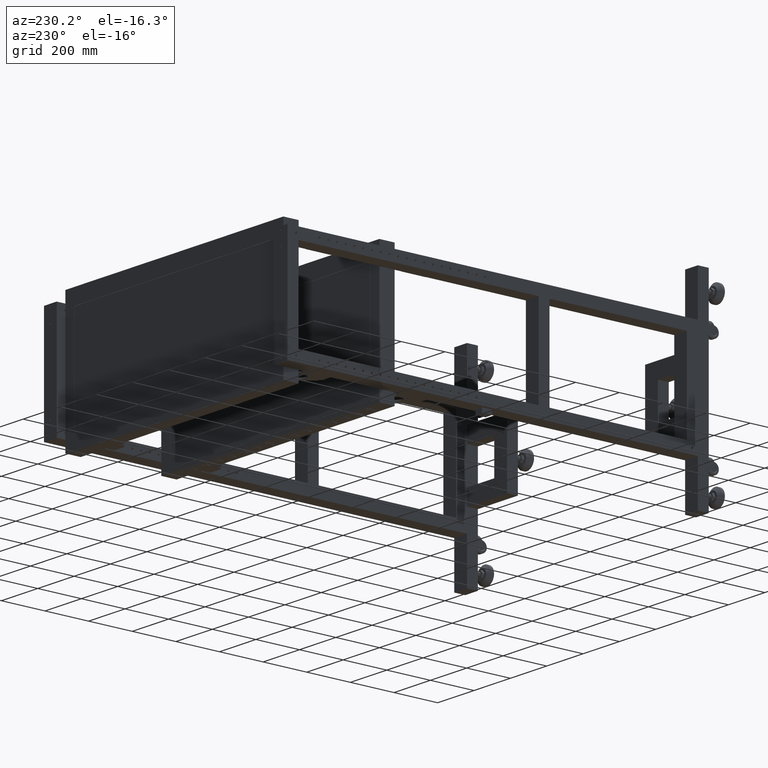
[diagram: clean part render]
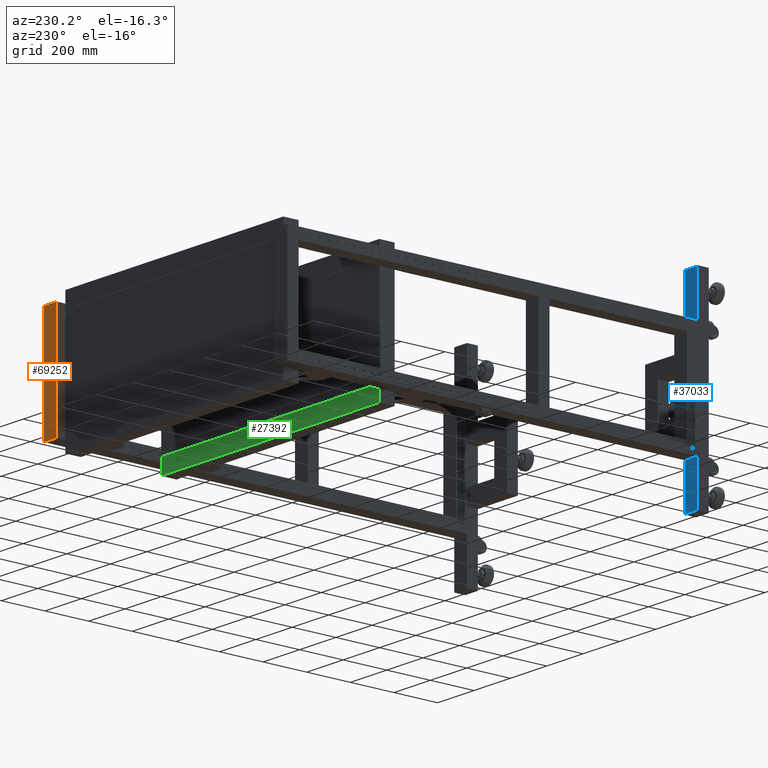
[diagram: same view with three faces highlighted in distinct colors, each labeled with its STEP entity id]
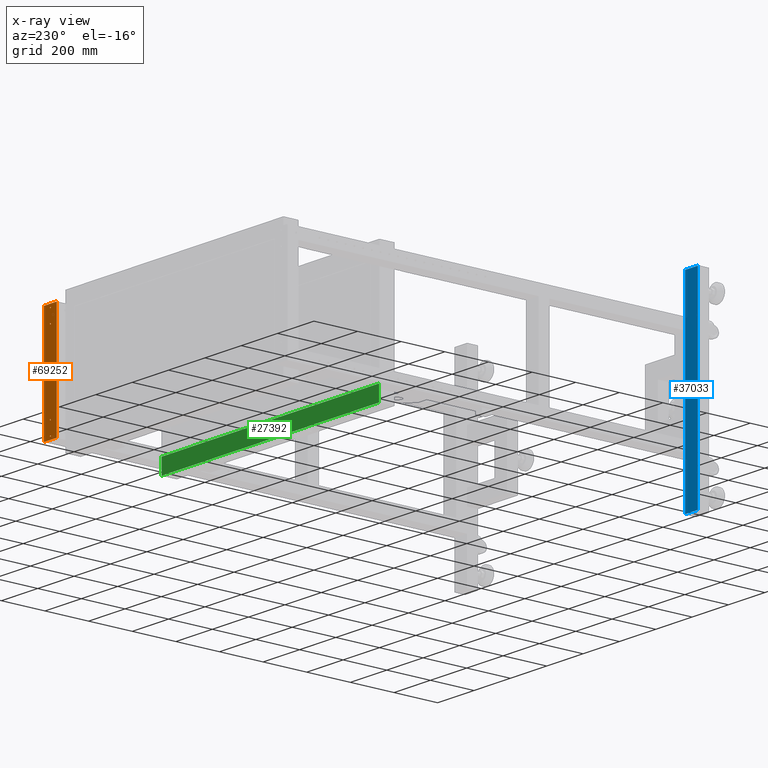
[diagram: x-ray of the same camera — body ghosted, the three highlighted faces saturated]
A machine part, auxiliary view with three faces highlighted in distinct colors.
The next image is the same camera in x-ray (body ghosted, the three faces saturated) — at least one of them is partly hidden behind the body in this view.
Their STEP definitions:

[orange] entity #69252 — the highlighted planar face has unit normal (-0, 1, 0).
#1042 = VERTEX_POINT ( 'NONE', #77399 ) ;
#1580 = EDGE_CURVE ( 'NONE', #29739, #4382, #46975, .T. ) ;
#1806 = CARTESIAN_POINT ( 'NONE',  ( -33.17248743718393200, 1036.441080402011266, -238.0999999999999943 ) ) ;
#3222 = EDGE_LOOP ( 'NONE', ( #7220, #79406 ) ) ;
#3864 = CARTESIAN_POINT ( 'NONE',  ( -33.17248743718393200, 1036.441080402011266, 238.0999999999999659 ) ) ;
#4382 = VERTEX_POINT ( 'NONE', #9919 ) ;
#7220 = ORIENTED_EDGE ( 'NONE', *, *, #58741, .T. ) ;
#8092 = LINE ( 'NONE', #32867, #64312 ) ;
#9919 = CARTESIAN_POINT ( 'NONE',  ( -33.17248743718393200, 1036.441080402011266, -233.9000000000000057 ) ) ;
#10649 = CARTESIAN_POINT ( 'NONE',  ( -33.17248743718393200, 1036.441080402011266, -236.0000000000000000 ) ) ;
#11349 = LINE ( 'NONE', #53639, #42828 ) ;
#11437 = DIRECTION ( 'NONE',  ( 0.000000000000000000, 0.000000000000000000, 1.000000000000000000 ) ) ;
#11704 = CARTESIAN_POINT ( 'NONE',  ( 1.827512562815769570, 1036.441080402011039, 250.0000000000000000 ) ) ;
#11787 = ORIENTED_EDGE ( 'NONE', *, *, #47866, .T. ) ;
#12287 = ORIENTED_EDGE ( 'NONE', *, *, #35877, .F. ) ;
#14520 = EDGE_CURVE ( 'NONE', #21040, #73559, #49910, .T. ) ;
#16628 = FACE_BOUND ( 'NONE', #76742, .T. ) ;
#17618 = ORIENTED_EDGE ( 'NONE', *, *, #55561, .T. ) ;
#18997 = EDGE_LOOP ( 'NONE', ( #26499, #12287, #54433, #17618 ) ) ;
#19213 = DIRECTION ( 'NONE',  ( 2.251766706479394348E-16, -1.000000000000000000, -0.000000000000000000 ) ) ;
#19225 = CARTESIAN_POINT ( 'NONE',  ( -33.17248743718393200, 1036.441080402011266, 176.0000000000000000 ) ) ;
#19370 = ORIENTED_EDGE ( 'NONE', *, *, #1580, .T. ) ;
#19407 = VERTEX_POINT ( 'NONE', #58174 ) ;
#20521 = EDGE_CURVE ( 'NONE', #56165, #19407, #60353, .T. ) ;
#21015 = ORIENTED_EDGE ( 'NONE', *, *, #43884, .T. ) ;
#21040 = VERTEX_POINT ( 'NONE', #52423 ) ;
#21109 = DIRECTION ( 'NONE',  ( 2.251766706479394348E-16, -1.000000000000000000, -0.000000000000000000 ) ) ;
#24600 = VERTEX_POINT ( 'NONE', #75227 ) ;
#24863 = DIRECTION ( 'NONE',  ( 2.251766706479394348E-16, -1.000000000000000000, -0.000000000000000000 ) ) ;
#26499 = ORIENTED_EDGE ( 'NONE', *, *, #14520, .T. ) ;
#28445 = EDGE_CURVE ( 'NONE', #34095, #73261, #47643, .T. ) ;
#29619 = CARTESIAN_POINT ( 'NONE',  ( 1.827512562815769570, 1036.441080402011039, -250.0000000000000000 ) ) ;
#29739 = VERTEX_POINT ( 'NONE', #1806 ) ;
#29854 = CARTESIAN_POINT ( 'NONE',  ( 1.827512562815769570, 1036.441080402011039, 248.0000000000000000 ) ) ;
#30972 = AXIS2_PLACEMENT_3D ( 'NONE', #73875, #60482, #60891 ) ;
#32627 = AXIS2_PLACEMENT_3D ( 'NONE', #50845, #39039, #63800 ) ;
#32867 = CARTESIAN_POINT ( 'NONE',  ( 1.827512562815769570, 1036.441080402011039, -250.0000000000000000 ) ) ;
#33211 = CARTESIAN_POINT ( 'NONE',  ( -33.17248743718393200, 1036.441080402011266, -173.9000000000000057 ) ) ;
#33297 = AXIS2_PLACEMENT_3D ( 'NONE', #61539, #47775, #42049 ) ;
#34095 = VERTEX_POINT ( 'NONE', #40954 ) ;
#35309 = FACE_BOUND ( 'NONE', #69878, .T. ) ;
#35704 = FACE_OUTER_BOUND ( 'NONE', #18997, .T. ) ;
#35716 = AXIS2_PLACEMENT_3D ( 'NONE', #19225, #45205, #44010 ) ;
#35877 = EDGE_CURVE ( 'NONE', #53584, #73559, #41245, .T. ) ;
#36106 = PLANE ( 'NONE',  #30972 ) ;
#36271 = DIRECTION ( 'NONE',  ( 0.000000000000000000, 0.000000000000000000, -1.000000000000000000 ) ) ;
#37452 = DIRECTION ( 'NONE',  ( 0.000000000000000000, 0.000000000000000000, 1.000000000000000000 ) ) ;
#39039 = DIRECTION ( 'NONE',  ( 2.251766706479394348E-16, -1.000000000000000000, -0.000000000000000000 ) ) ;
#39173 = AXIS2_PLACEMENT_3D ( 'NONE', #68723, #24863, #37452 ) ;
#40954 = CARTESIAN_POINT ( 'NONE',  ( -33.17248743718393200, 1036.441080402011266, -178.0999999999999943 ) ) ;
#41245 = LINE ( 'NONE', #29854, #44216 ) ;
#41396 = FACE_BOUND ( 'NONE', #54398, .T. ) ;
#42049 = DIRECTION ( 'NONE',  ( 0.000000000000000000, 0.000000000000000000, 1.000000000000000000 ) ) ;
#42769 = CARTESIAN_POINT ( 'NONE',  ( -33.17248743718393200, 1036.441080402011266, 176.0000000000000000 ) ) ;
#42828 = VECTOR ( 'NONE', #59710, 1000.000000000000000 ) ;
#43884 = EDGE_CURVE ( 'NONE', #1042, #75934, #79220, .T. ) ;
#44010 = DIRECTION ( 'NONE',  ( 0.000000000000000000, 0.000000000000000000, -1.000000000000000000 ) ) ;
#44216 = VECTOR ( 'NONE', #53476, 1000.000000000000000 ) ;
#44410 = CIRCLE ( 'NONE', #56132, 2.099999999999990763 ) ;
#45118 = DIRECTION ( 'NONE',  ( 0.000000000000000000, 0.000000000000000000, 1.000000000000000000 ) ) ;
#45205 = DIRECTION ( 'NONE',  ( 2.251766706479394348E-16, -1.000000000000000000, -0.000000000000000000 ) ) ;
#46149 = CARTESIAN_POINT ( 'NONE',  ( -33.17248743718393200, 1036.441080402011266, 173.9000000000000057 ) ) ;
#46975 = CIRCLE ( 'NONE', #39173, 2.099999999999990763 ) ;
#47643 = CIRCLE ( 'NONE', #33297, 2.099999999999990763 ) ;
#47775 = DIRECTION ( 'NONE',  ( 2.251766706479394348E-16, -1.000000000000000000, -0.000000000000000000 ) ) ;
#47866 = EDGE_CURVE ( 'NONE', #19407, #56165, #78506, .T. ) ;
#49535 = CARTESIAN_POINT ( 'NONE',  ( -33.17248743718393200, 1036.441080402011266, 236.0000000000000000 ) ) ;
#49910 = LINE ( 'NONE', #11704, #58037 ) ;
#50845 = CARTESIAN_POINT ( 'NONE',  ( -33.17248743718393200, 1036.441080402011266, 236.0000000000000000 ) ) ;
#51214 = CARTESIAN_POINT ( 'NONE',  ( -33.17248743718393200, 1036.441080402011266, -176.0000000000000000 ) ) ;
#52423 = CARTESIAN_POINT ( 'NONE',  ( -68.17248743718407411, 1036.441080402011039, 250.0000000000000000 ) ) ;
#53476 = DIRECTION ( 'NONE',  ( 0.000000000000000000, 0.000000000000000000, 1.000000000000000000 ) ) ;
#53584 = VERTEX_POINT ( 'NONE', #29619 ) ;
#53639 = CARTESIAN_POINT ( 'NONE',  ( -68.17248743718407411, 1036.441080402011039, 248.0000000000000000 ) ) ;
#54398 = EDGE_LOOP ( 'NONE', ( #59397, #21015 ) ) ;
#54433 = ORIENTED_EDGE ( 'NONE', *, *, #65528, .F. ) ;
#54516 = DIRECTION ( 'NONE',  ( 2.251766706479394348E-16, -1.000000000000000000, -0.000000000000000000 ) ) ;
#55561 = EDGE_CURVE ( 'NONE', #24600, #21040, #11349, .T. ) ;
#56066 = AXIS2_PLACEMENT_3D ( 'NONE', #51214, #21109, #45118 ) ;
#56132 = AXIS2_PLACEMENT_3D ( 'NONE', #49535, #74287, #68182 ) ;
#56165 = VERTEX_POINT ( 'NONE', #46149 ) ;
#56524 = AXIS2_PLACEMENT_3D ( 'NONE', #42769, #19213, #36271 ) ;
#57449 = CIRCLE ( 'NONE', #72955, 2.099999999999990763 ) ;
#58037 = VECTOR ( 'NONE', #61663, 1000.000000000000000 ) ;
#58174 = CARTESIAN_POINT ( 'NONE',  ( -33.17248743718393200, 1036.441080402011266, 178.0999999999999943 ) ) ;
#58741 = EDGE_CURVE ( 'NONE', #73261, #34095, #76800, .T. ) ;
#58961 = EDGE_CURVE ( 'NONE', #75934, #1042, #44410, .T. ) ;
#59397 = ORIENTED_EDGE ( 'NONE', *, *, #58961, .T. ) ;
#59513 = EDGE_CURVE ( 'NONE', #4382, #29739, #57449, .T. ) ;
#59710 = DIRECTION ( 'NONE',  ( 0.000000000000000000, 0.000000000000000000, 1.000000000000000000 ) ) ;
#60353 = CIRCLE ( 'NONE', #35716, 2.099999999999990763 ) ;
#60482 = DIRECTION ( 'NONE',  ( -2.251766706479394348E-16, 1.000000000000000000, 0.000000000000000000 ) ) ;
#60891 = DIRECTION ( 'NONE',  ( -1.000000000000000000, -2.251766706479394348E-16, 0.000000000000000000 ) ) ;
#61539 = CARTESIAN_POINT ( 'NONE',  ( -33.17248743718393200, 1036.441080402011266, -176.0000000000000000 ) ) ;
#61663 = DIRECTION ( 'NONE',  ( 1.000000000000000000, 2.251766706479394348E-16, 0.000000000000000000 ) ) ;
#63800 = DIRECTION ( 'NONE',  ( 0.000000000000000000, 0.000000000000000000, -1.000000000000000000 ) ) ;
#64312 = VECTOR ( 'NONE', #77534, 1000.000000000000000 ) ;
#65490 = CARTESIAN_POINT ( 'NONE',  ( 1.827512562815769570, 1036.441080402011039, 250.0000000000000000 ) ) ;
#65528 = EDGE_CURVE ( 'NONE', #24600, #53584, #8092, .T. ) ;
#66653 = ORIENTED_EDGE ( 'NONE', *, *, #20521, .T. ) ;
#68182 = DIRECTION ( 'NONE',  ( 0.000000000000000000, 0.000000000000000000, -1.000000000000000000 ) ) ;
#68723 = CARTESIAN_POINT ( 'NONE',  ( -33.17248743718393200, 1036.441080402011266, -236.0000000000000000 ) ) ;
#69252 = ADVANCED_FACE ( 'NONE', ( #35704, #79968, #16628, #35309, #41396 ), #36106, .T. ) ;
#69878 = EDGE_LOOP ( 'NONE', ( #11787, #66653 ) ) ;
#72955 = AXIS2_PLACEMENT_3D ( 'NONE', #10649, #54516, #11437 ) ;
#73261 = VERTEX_POINT ( 'NONE', #33211 ) ;
#73559 = VERTEX_POINT ( 'NONE', #65490 ) ;
#73875 = CARTESIAN_POINT ( 'NONE',  ( 1.827512562815769570, 1036.441080402011039, 248.0000000000000000 ) ) ;
#74287 = DIRECTION ( 'NONE',  ( 2.251766706479394348E-16, -1.000000000000000000, -0.000000000000000000 ) ) ;
#75227 = CARTESIAN_POINT ( 'NONE',  ( -68.17248743718407411, 1036.441080402011039, -250.0000000000000000 ) ) ;
#75934 = VERTEX_POINT ( 'NONE', #3864 ) ;
#76742 = EDGE_LOOP ( 'NONE', ( #76869, #19370 ) ) ;
#76800 = CIRCLE ( 'NONE', #56066, 2.099999999999990763 ) ;
#76869 = ORIENTED_EDGE ( 'NONE', *, *, #59513, .T. ) ;
#77399 = CARTESIAN_POINT ( 'NONE',  ( -33.17248743718393200, 1036.441080402011266, 233.9000000000000057 ) ) ;
#77534 = DIRECTION ( 'NONE',  ( 1.000000000000000000, 2.251766706479394348E-16, 0.000000000000000000 ) ) ;
#78506 = CIRCLE ( 'NONE', #56524, 2.099999999999990763 ) ;
#79220 = CIRCLE ( 'NONE', #32627, 2.099999999999990763 ) ;
#79406 = ORIENTED_EDGE ( 'NONE', *, *, #28445, .T. ) ;
#79968 = FACE_BOUND ( 'NONE', #3222, .T. ) ;

[blue] entity #37033 — the highlighted planar face has unit normal (-0, 1, 0).
#551 = CARTESIAN_POINT ( 'NONE',  ( -1338.172487437185055, -844.5589195979879378, -448.0000000000000568 ) ) ;
#944 = DIRECTION ( 'NONE',  ( -1.000000000000000000, 0.000000000000000000, 0.000000000000000000 ) ) ;
#1339 = LINE ( 'NONE', #56616, #28170 ) ;
#5672 = LINE ( 'NONE', #66615, #18495 ) ;
#10622 = AXIS2_PLACEMENT_3D ( 'NONE', #27181, #32087, #76326 ) ;
#17522 = CARTESIAN_POINT ( 'NONE',  ( -1338.172487437185055, -844.5589195979879378, -448.0000000000000568 ) ) ;
#18495 = VECTOR ( 'NONE', #30461, 1000.000000000000000 ) ;
#21137 = ORIENTED_EDGE ( 'NONE', *, *, #38989, .T. ) ;
#21810 = EDGE_CURVE ( 'NONE', #35215, #51206, #30717, .T. ) ;
#22722 = VECTOR ( 'NONE', #37215, 1000.000000000000000 ) ;
#24774 = ORIENTED_EDGE ( 'NONE', *, *, #62229, .F. ) ;
#27181 = CARTESIAN_POINT ( 'NONE',  ( -1338.172487437185055, -844.5589195979879378, -448.0000000000000568 ) ) ;
#28170 = VECTOR ( 'NONE', #944, 1000.000000000000000 ) ;
#30301 = ORIENTED_EDGE ( 'NONE', *, *, #21810, .F. ) ;
#30461 = DIRECTION ( 'NONE',  ( 0.000000000000000000, 0.000000000000000000, 1.000000000000000000 ) ) ;
#30538 = CARTESIAN_POINT ( 'NONE',  ( -1338.172487437185055, -844.5589195979879378, 447.9999999999999432 ) ) ;
#30717 = LINE ( 'NONE', #80269, #22722 ) ;
#32087 = DIRECTION ( 'NONE',  ( -0.000000000000000000, 1.000000000000000000, 0.000000000000000000 ) ) ;
#32480 = PLANE ( 'NONE',  #10622 ) ;
#35215 = VERTEX_POINT ( 'NONE', #73618 ) ;
#37033 = ADVANCED_FACE ( 'NONE', ( #46289 ), #32480, .T. ) ;
#37215 = DIRECTION ( 'NONE',  ( 0.000000000000000000, 0.000000000000000000, 1.000000000000000000 ) ) ;
#38989 = EDGE_CURVE ( 'NONE', #70293, #63651, #5672, .T. ) ;
#40316 = EDGE_LOOP ( 'NONE', ( #24774, #30301, #73661, #21137 ) ) ;
#40458 = VECTOR ( 'NONE', #60994, 1000.000000000000000 ) ;
#46289 = FACE_OUTER_BOUND ( 'NONE', #40316, .T. ) ;
#47012 = CARTESIAN_POINT ( 'NONE',  ( -1268.172487437184827, -844.5589195979879378, 447.9999999999999432 ) ) ;
#51206 = VERTEX_POINT ( 'NONE', #47012 ) ;
#56616 = CARTESIAN_POINT ( 'NONE',  ( -1338.172487437185055, -844.5589195979879378, 447.9999999999999432 ) ) ;
#60994 = DIRECTION ( 'NONE',  ( -1.000000000000000000, 0.000000000000000000, 0.000000000000000000 ) ) ;
#62229 = EDGE_CURVE ( 'NONE', #51206, #63651, #1339, .T. ) ;
#63651 = VERTEX_POINT ( 'NONE', #30538 ) ;
#66615 = CARTESIAN_POINT ( 'NONE',  ( -1338.172487437185055, -844.5589195979879378, -448.0000000000000568 ) ) ;
#68288 = LINE ( 'NONE', #17522, #40458 ) ;
#70293 = VERTEX_POINT ( 'NONE', #551 ) ;
#73618 = CARTESIAN_POINT ( 'NONE',  ( -1268.172487437184827, -844.5589195979879378, -448.0000000000000568 ) ) ;
#73661 = ORIENTED_EDGE ( 'NONE', *, *, #73720, .T. ) ;
#73720 = EDGE_CURVE ( 'NONE', #35215, #70293, #68288, .T. ) ;
#76326 = DIRECTION ( 'NONE',  ( 1.000000000000000000, 0.000000000000000000, 0.000000000000000000 ) ) ;
#80269 = CARTESIAN_POINT ( 'NONE',  ( -1268.172487437184827, -844.5589195979879378, -448.0000000000000568 ) ) ;

[green] entity #27392 — the highlighted planar face has unit normal (0, -1, -0).
#1612 = VERTEX_POINT ( 'NONE', #54522 ) ;
#3625 = EDGE_CURVE ( 'NONE', #4481, #10986, #29022, .T. ) ;
#4238 = CARTESIAN_POINT ( 'NONE',  ( 159.8275125628159117, 556.9410804020126307, -229.9999999999998863 ) ) ;
#4481 = VERTEX_POINT ( 'NONE', #23291 ) ;
#8193 = DIRECTION ( 'NONE',  ( 2.251766706479394348E-16, -1.000000000000000000, -2.999999999999999839E-15 ) ) ;
#8535 = CARTESIAN_POINT ( 'NONE',  ( -1266.172487437185964, 556.9410804020124033, -229.9999999999998863 ) ) ;
#8733 = CARTESIAN_POINT ( 'NONE',  ( -1266.172487437185964, 556.9410804020124033, -229.9999999999998863 ) ) ;
#10192 = EDGE_CURVE ( 'NONE', #10986, #14305, #43804, .T. ) ;
#10743 = DIRECTION ( 'NONE',  ( -1.000000000000000000, -2.251766706479394348E-16, 0.000000000000000000 ) ) ;
#10847 = DIRECTION ( 'NONE',  ( -6.755300119438182550E-31, 2.999999999999999839E-15, -1.000000000000000000 ) ) ;
#10986 = VERTEX_POINT ( 'NONE', #8535 ) ;
#14305 = VERTEX_POINT ( 'NONE', #57279 ) ;
#14638 = VECTOR ( 'NONE', #10743, 1000.000000000000000 ) ;
#15758 = CARTESIAN_POINT ( 'NONE',  ( -70.17248743718407411, 556.9410804020126307, -229.9999999999998863 ) ) ;
#19303 = ORIENTED_EDGE ( 'NONE', *, *, #10192, .F. ) ;
#20190 = AXIS2_PLACEMENT_3D ( 'NONE', #76020, #8193, #32970 ) ;
#21226 = EDGE_CURVE ( 'NONE', #1612, #14305, #73871, .T. ) ;
#22834 = VECTOR ( 'NONE', #49531, 1000.000000000000000 ) ;
#23291 = CARTESIAN_POINT ( 'NONE',  ( -70.17248743718407411, 556.9410804020126307, -229.9999999999998863 ) ) ;
#27392 = ADVANCED_FACE ( 'NONE', ( #57357 ), #63042, .F. ) ;
#27748 = VECTOR ( 'NONE', #10847, 1000.000000000000000 ) ;
#29022 = LINE ( 'NONE', #4238, #14638 ) ;
#32970 = DIRECTION ( 'NONE',  ( -6.755300119438182550E-31, 2.999999999999999839E-15, -1.000000000000000000 ) ) ;
#33736 = VECTOR ( 'NONE', #76554, 1000.000000000000000 ) ;
#38232 = EDGE_LOOP ( 'NONE', ( #40418, #19303, #72401, #77682 ) ) ;
#40418 = ORIENTED_EDGE ( 'NONE', *, *, #21226, .T. ) ;
#43804 = LINE ( 'NONE', #8733, #33736 ) ;
#49531 = DIRECTION ( 'NONE',  ( -1.000000000000000000, -2.251766706479394348E-16, 0.000000000000000000 ) ) ;
#54522 = CARTESIAN_POINT ( 'NONE',  ( -70.17248743718407411, 556.9410804020128580, -299.9999999999999432 ) ) ;
#57279 = CARTESIAN_POINT ( 'NONE',  ( -1266.172487437185964, 556.9410804020126307, -299.9999999999999432 ) ) ;
#57357 = FACE_OUTER_BOUND ( 'NONE', #38232, .T. ) ;
#60328 = EDGE_CURVE ( 'NONE', #4481, #1612, #71401, .T. ) ;
#63042 = PLANE ( 'NONE',  #20190 ) ;
#71401 = LINE ( 'NONE', #15758, #27748 ) ;
#72401 = ORIENTED_EDGE ( 'NONE', *, *, #3625, .F. ) ;
#73871 = LINE ( 'NONE', #78762, #22834 ) ;
#76020 = CARTESIAN_POINT ( 'NONE',  ( 159.8275125628159117, 556.9410804020126307, -229.9999999999998863 ) ) ;
#76554 = DIRECTION ( 'NONE',  ( 0.000000000000000000, 2.999999999999999839E-15, -1.000000000000000000 ) ) ;
#77682 = ORIENTED_EDGE ( 'NONE', *, *, #60328, .T. ) ;
#78762 = CARTESIAN_POINT ( 'NONE',  ( 159.8275125628159117, 556.9410804020128580, -299.9999999999999432 ) ) ;